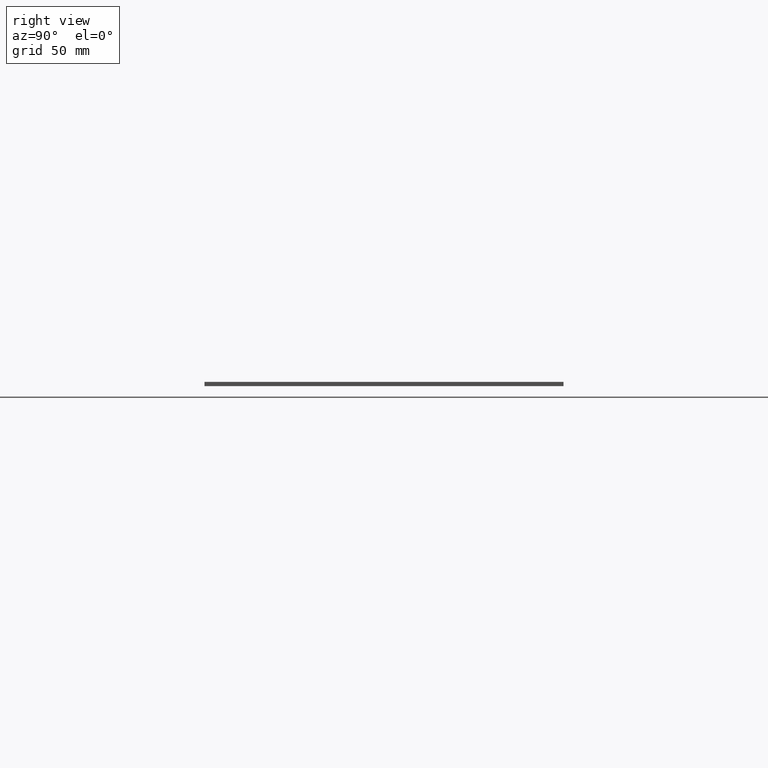
[diagram: clean part render]
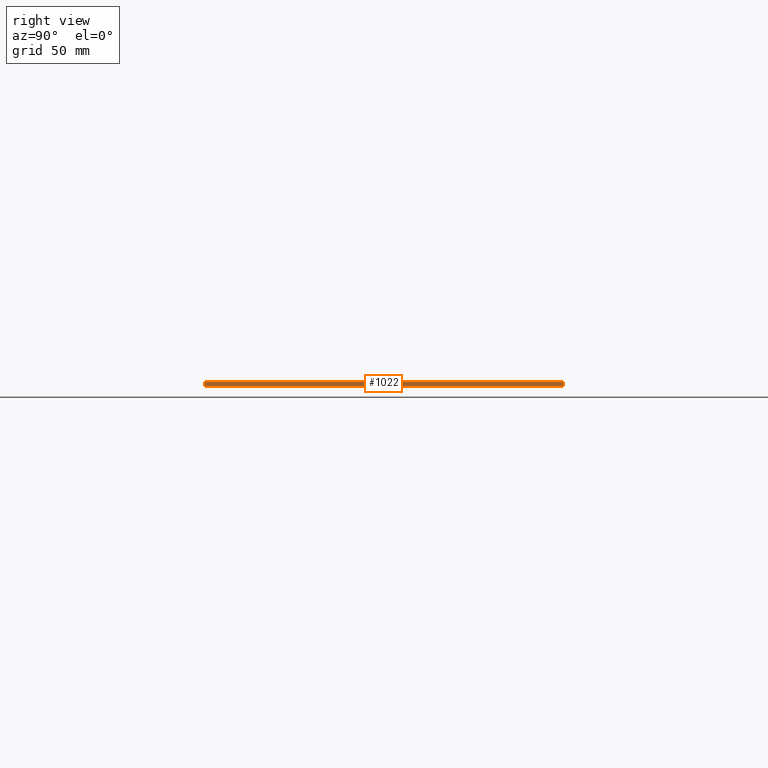
[diagram: same view with one face highlighted and labeled with its STEP entity id]
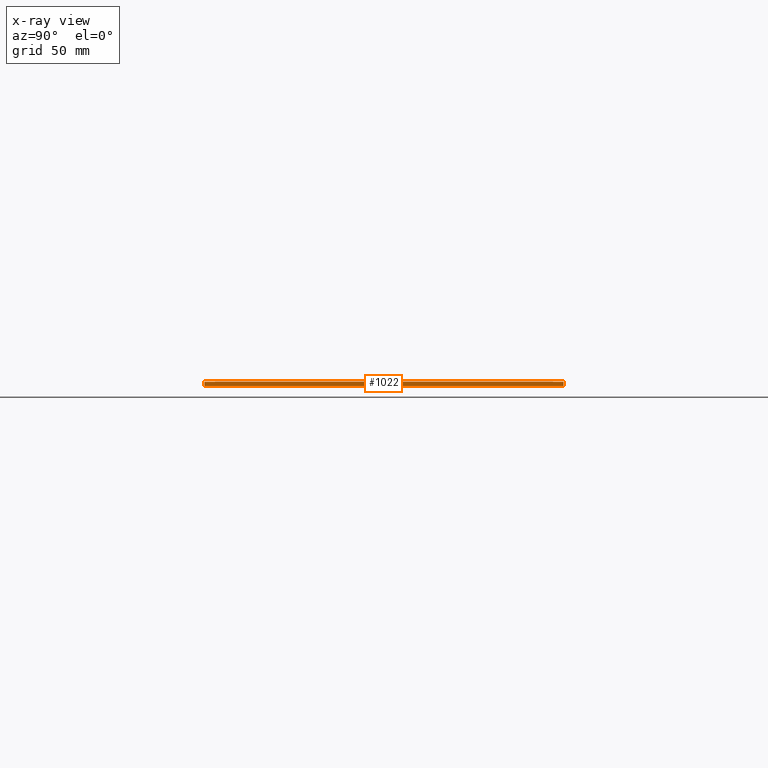
[diagram: x-ray of the same camera — body ghosted, the highlighted face saturated]
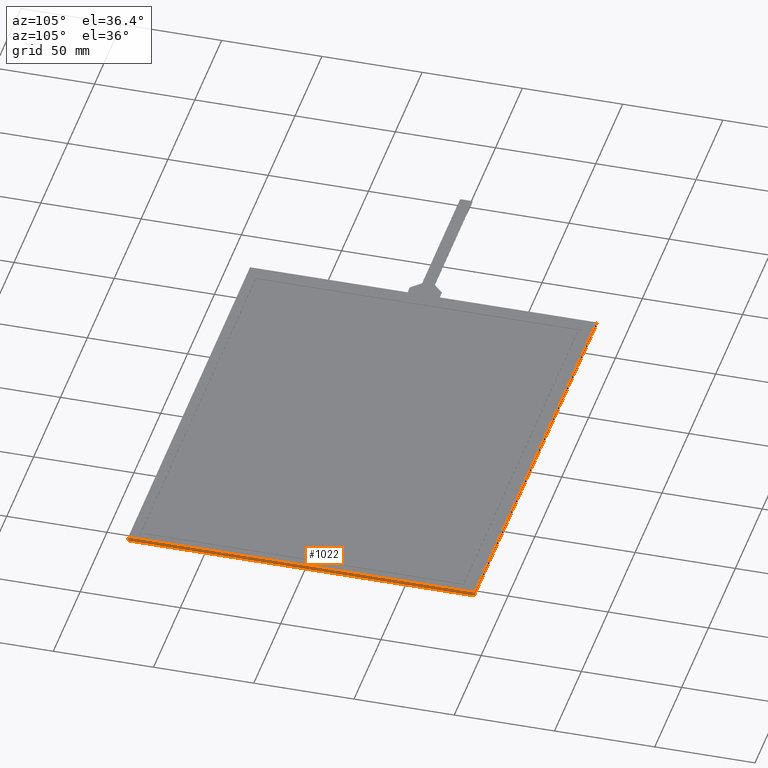
[diagram: same view with one face highlighted and labeled with its STEP entity id]
A machine part, right view. The second image highlights one B-rep face of the part: STEP entity #1022.
The next image is the same camera in x-ray: the body ghosted, the highlighted face saturated — about 0% of this face is hidden behind the body in this view.
A second angle (auxiliary view) of the same face is appended — the face is thin or edge-on in the first view.
In plain terms, the highlighted planar face has unit normal (1, 0, 0).
Its self-contained STEP definition (entity closure, byte-faithful):
#90=PLANE('',#1105);
#141=FACE_OUTER_BOUND('',#195,.T.);
#195=EDGE_LOOP('',(#953,#954,#955,#956));
#316=LINE('',#1626,#442);
#321=LINE('',#1636,#447);
#322=LINE('',#1639,#448);
#323=LINE('',#1640,#449);
#442=VECTOR('',#1342,10.);
#447=VECTOR('',#1351,10.);
#448=VECTOR('',#1354,10.);
#449=VECTOR('',#1355,10.);
#547=VERTEX_POINT('',#1619);
#550=VERTEX_POINT('',#1624);
#553=VERTEX_POINT('',#1634);
#554=VERTEX_POINT('',#1638);
#684=EDGE_CURVE('',#550,#547,#316,.T.);
#689=EDGE_CURVE('',#550,#553,#321,.T.);
#690=EDGE_CURVE('',#554,#553,#322,.T.);
#691=EDGE_CURVE('',#547,#554,#323,.T.);
#953=ORIENTED_EDGE('',*,*,#684,.F.);
#954=ORIENTED_EDGE('',*,*,#689,.T.);
#955=ORIENTED_EDGE('',*,*,#690,.F.);
#956=ORIENTED_EDGE('',*,*,#691,.F.);
#1022=ADVANCED_FACE('',(#141),#90,.T.);
#1105=AXIS2_PLACEMENT_3D('',#1637,#1352,#1353);
#1342=DIRECTION('',(0.,1.,0.));
#1351=DIRECTION('',(0.,0.,-1.));
#1352=DIRECTION('center_axis',(1.,0.,0.));
#1353=DIRECTION('ref_axis',(0.,-1.,0.));
#1354=DIRECTION('',(0.,-1.,0.));
#1355=DIRECTION('',(0.,0.,-1.));
#1619=CARTESIAN_POINT('',(111.,86.5000000000001,0.));
#1624=CARTESIAN_POINT('',(111.,-86.4999999999999,0.));
#1626=CARTESIAN_POINT('',(111.,-86.4999999999999,0.));
#1634=CARTESIAN_POINT('',(111.,-86.4999999999999,-2.1));
#1636=CARTESIAN_POINT('',(111.,-86.4999999999999,0.));
#1637=CARTESIAN_POINT('Origin',(111.,86.5000000000001,0.));
#1638=CARTESIAN_POINT('',(111.,86.5000000000001,-2.1));
#1639=CARTESIAN_POINT('',(111.,-86.4999999999999,-2.1));
#1640=CARTESIAN_POINT('',(111.,86.5000000000001,0.));